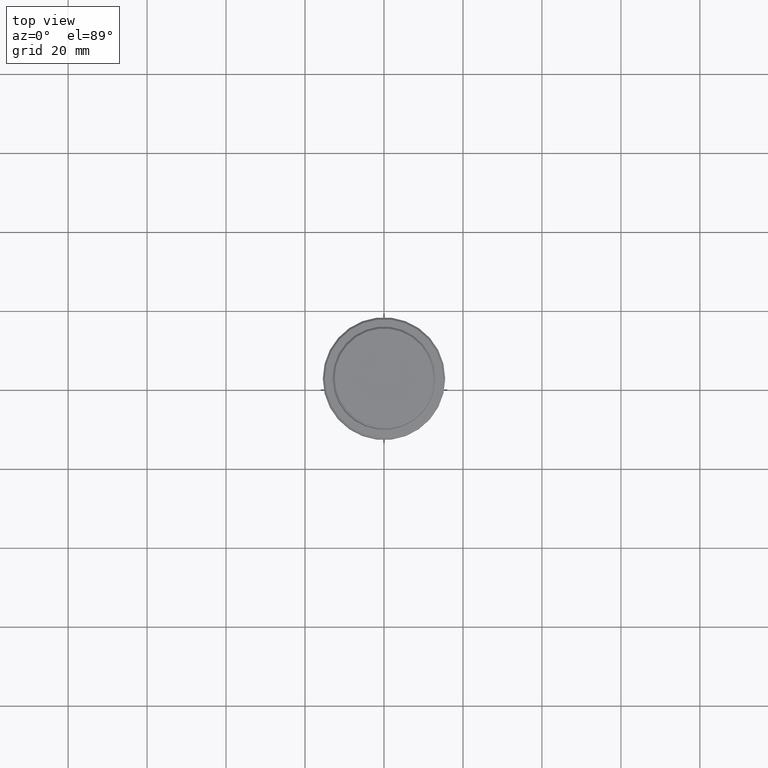
[diagram: clean part render]
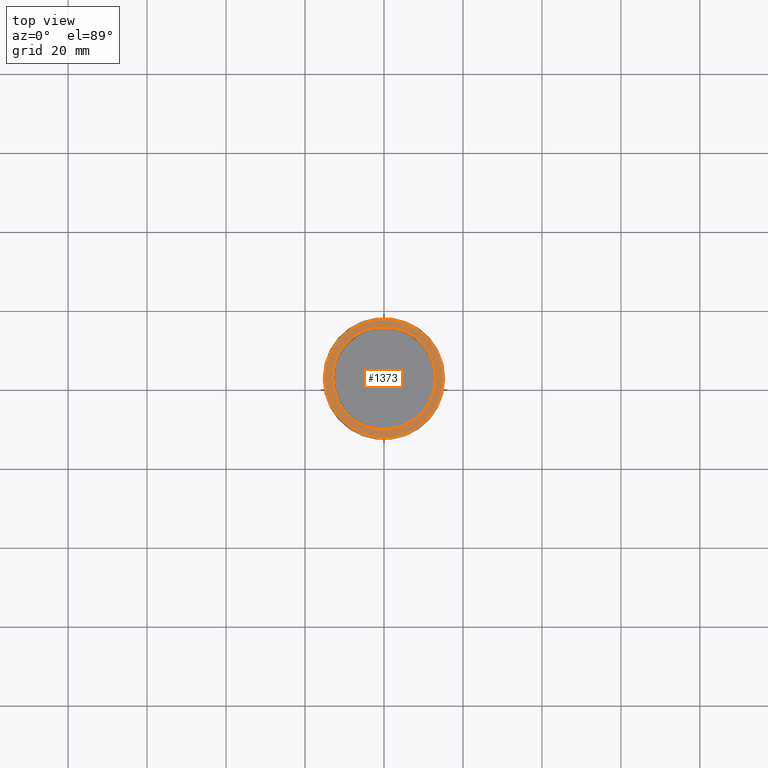
[diagram: same view with one face highlighted and labeled with its STEP entity id]
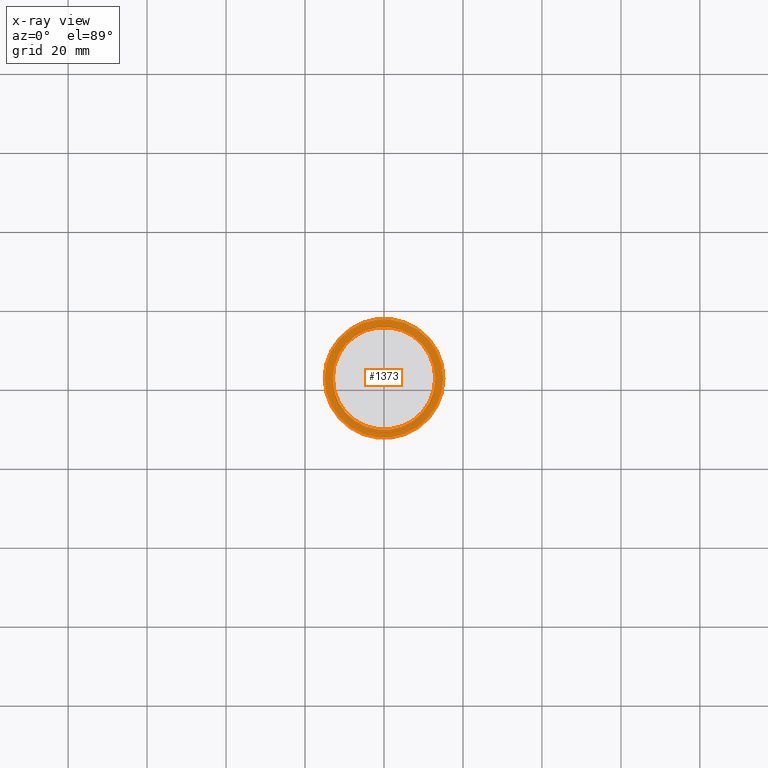
[diagram: x-ray of the same camera — body ghosted, the highlighted face saturated]
A machine part, top view. The second image highlights one B-rep face of the part: STEP entity #1373.
The next image is the same camera in x-ray: the body ghosted, the highlighted face saturated — about 0% of this face is hidden behind the body in this view.
In plain terms, the highlighted planar face has unit normal (0, -0, 1).
Its self-contained STEP definition (entity closure, byte-faithful):
#4 = CARTESIAN_POINT ( 'NONE',  ( 14.99999999999998579, 1.867586368699712587E-15, -8.999999999999987566 ) ) ;
#21 = CIRCLE ( 'NONE', #928, 12.99999999999999467 ) ;
#43 = DIRECTION ( 'NONE',  ( 1.000000000000000000, 0.000000000000000000, 0.000000000000000000 ) ) ;
#49 = CARTESIAN_POINT ( 'NONE',  ( 0.000000000000000000, 0.000000000000000000, -8.999999999999987566 ) ) ;
#134 = AXIS2_PLACEMENT_3D ( 'NONE', #634, #643, #1064 ) ;
#150 = AXIS2_PLACEMENT_3D ( 'NONE', #378, #1243, #43 ) ;
#156 = CARTESIAN_POINT ( 'NONE',  ( -14.99999999999998579, 0.000000000000000000, -8.999999999999987566 ) ) ;
#164 = ORIENTED_EDGE ( 'NONE', *, *, #1052, .T. ) ;
#263 = PLANE ( 'NONE',  #711 ) ;
#280 = FACE_BOUND ( 'NONE', #872, .T. ) ;
#281 = DIRECTION ( 'NONE',  ( 1.000000000000000000, 0.000000000000000000, 0.000000000000000000 ) ) ;
#343 = EDGE_CURVE ( 'NONE', #1279, #1385, #837, .T. ) ;
#378 = CARTESIAN_POINT ( 'NONE',  ( 0.000000000000000000, 0.000000000000000000, -8.999999999999987566 ) ) ;
#415 = ORIENTED_EDGE ( 'NONE', *, *, #343, .T. ) ;
#486 = VERTEX_POINT ( 'NONE', #651 ) ;
#539 = CARTESIAN_POINT ( 'NONE',  ( 12.99999999999999467, 0.000000000000000000, -8.999999999999987566 ) ) ;
#589 = DIRECTION ( 'NONE',  ( 0.000000000000000000, 0.000000000000000000, -1.000000000000000000 ) ) ;
#600 = DIRECTION ( 'NONE',  ( 0.000000000000000000, 0.000000000000000000, -1.000000000000000000 ) ) ;
#634 = CARTESIAN_POINT ( 'NONE',  ( 0.000000000000000000, 0.000000000000000000, -8.999999999999987566 ) ) ;
#638 = EDGE_LOOP ( 'NONE', ( #164, #415 ) ) ;
#643 = DIRECTION ( 'NONE',  ( -0.000000000000000000, -0.000000000000000000, 1.000000000000000000 ) ) ;
#651 = CARTESIAN_POINT ( 'NONE',  ( -12.99999999999999467, 1.592040838891558504E-15, -8.999999999999987566 ) ) ;
#666 = CIRCLE ( 'NONE', #134, 14.99999999999998579 ) ;
#711 = AXIS2_PLACEMENT_3D ( 'NONE', #1231, #712, #903 ) ;
#712 = DIRECTION ( 'NONE',  ( 0.000000000000000000, -0.000000000000000000, 1.000000000000000000 ) ) ;
#762 = EDGE_CURVE ( 'NONE', #1063, #486, #21, .T. ) ;
#778 = ORIENTED_EDGE ( 'NONE', *, *, #762, .T. ) ;
#797 = CARTESIAN_POINT ( 'NONE',  ( 0.000000000000000000, 0.000000000000000000, -8.999999999999987566 ) ) ;
#801 = FACE_OUTER_BOUND ( 'NONE', #638, .T. ) ;
#812 = ORIENTED_EDGE ( 'NONE', *, *, #1413, .T. ) ;
#837 = CIRCLE ( 'NONE', #150, 14.99999999999998579 ) ;
#872 = EDGE_LOOP ( 'NONE', ( #778, #812 ) ) ;
#903 = DIRECTION ( 'NONE',  ( 1.000000000000000000, 0.000000000000000000, 0.000000000000000000 ) ) ;
#911 = AXIS2_PLACEMENT_3D ( 'NONE', #49, #600, #1015 ) ;
#928 = AXIS2_PLACEMENT_3D ( 'NONE', #797, #589, #281 ) ;
#1015 = DIRECTION ( 'NONE',  ( 1.000000000000000000, 0.000000000000000000, 0.000000000000000000 ) ) ;
#1052 = EDGE_CURVE ( 'NONE', #1385, #1279, #666, .T. ) ;
#1063 = VERTEX_POINT ( 'NONE', #539 ) ;
#1064 = DIRECTION ( 'NONE',  ( 1.000000000000000000, 0.000000000000000000, 0.000000000000000000 ) ) ;
#1231 = CARTESIAN_POINT ( 'NONE',  ( 0.000000000000000000, 12.49999999999999289, -8.999999999999987566 ) ) ;
#1243 = DIRECTION ( 'NONE',  ( -0.000000000000000000, -0.000000000000000000, 1.000000000000000000 ) ) ;
#1245 = CIRCLE ( 'NONE', #911, 12.99999999999999467 ) ;
#1279 = VERTEX_POINT ( 'NONE', #4 ) ;
#1373 = ADVANCED_FACE ( 'NONE', ( #801, #280 ), #263, .T. ) ;
#1385 = VERTEX_POINT ( 'NONE', #156 ) ;
#1413 = EDGE_CURVE ( 'NONE', #486, #1063, #1245, .T. ) ;